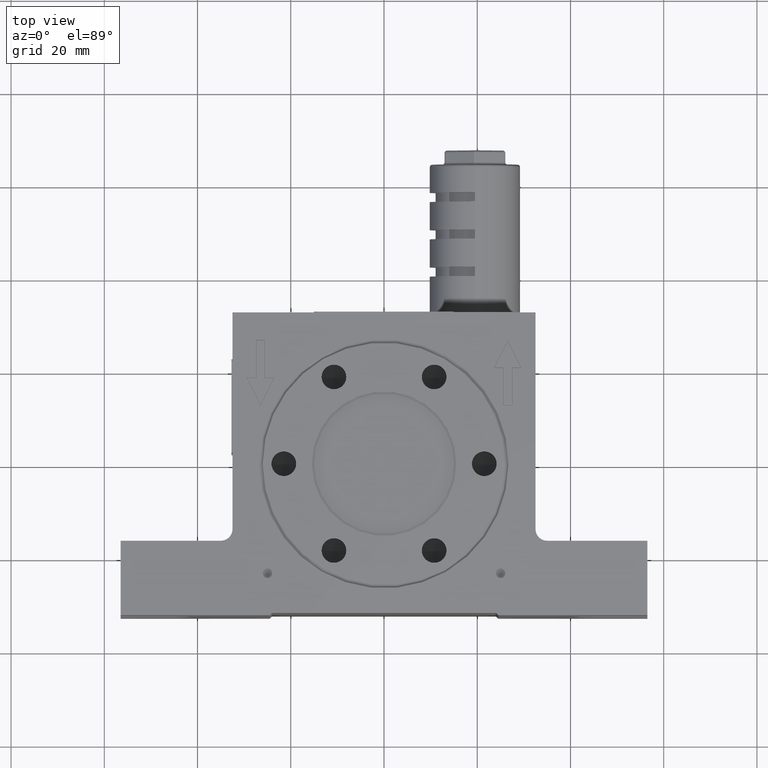
[diagram: clean part render]
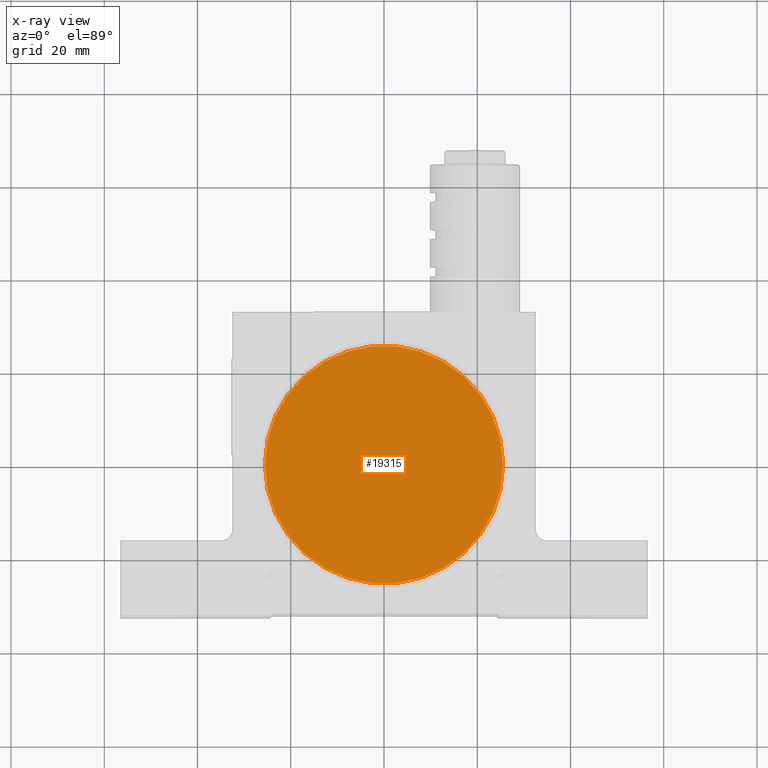
[diagram: x-ray — body ghosted, one internal face saturated and labeled with its STEP entity id]
A machine part, top view, then the same camera in x-ray: the body is ghosted and one INTERNAL B-rep face — a face not visible from any outside direction — is saturated and labeled: STEP entity #19315.
In plain terms, the highlighted planar face has unit normal (0, 0, 1).
Its self-contained STEP definition (entity closure, byte-faithful):
#641 = CARTESIAN_POINT ( 'NONE',  ( 0.0000000000000000000, 0.0000000000000000000, 9.500000000000000000 ) ) ;
#761 = DIRECTION ( 'NONE',  ( 1.000000000000000000, 0.0000000000000000000, 0.0000000000000000000 ) ) ;
#1406 = AXIS2_PLACEMENT_3D ( 'NONE', #15878, #17385, #2569 ) ;
#2023 = EDGE_LOOP ( 'NONE', ( #4842, #4991 ) ) ;
#2569 = DIRECTION ( 'NONE',  ( 1.000000000000000000, 0.0000000000000000000, 0.0000000000000000000 ) ) ;
#3571 = EDGE_CURVE ( 'NONE', #4522, #4630, #6135, .T. ) ;
#3970 = DIRECTION ( 'NONE',  ( -0.0000000000000000000, -0.0000000000000000000, -1.000000000000000000 ) ) ;
#4522 = VERTEX_POINT ( 'NONE', #7613 ) ;
#4630 = VERTEX_POINT ( 'NONE', #19493 ) ;
#4842 = ORIENTED_EDGE ( 'NONE', *, *, #8701, .T. ) ;
#4991 = ORIENTED_EDGE ( 'NONE', *, *, #3571, .T. ) ;
#6135 = CIRCLE ( 'NONE', #14151, 25.53500000000000000 ) ;
#7468 = CARTESIAN_POINT ( 'NONE',  ( 0.0000000000000000000, 0.0000000000000000000, 9.500000000000000000 ) ) ;
#7613 = CARTESIAN_POINT ( 'NONE',  ( -25.53500000000000000, 3.139382069614240100E-015, 9.500000000000000000 ) ) ;
#8701 = EDGE_CURVE ( 'NONE', #4630, #4522, #18253, .T. ) ;
#8855 = AXIS2_PLACEMENT_3D ( 'NONE', #7468, #10670, #761 ) ;
#10670 = DIRECTION ( 'NONE',  ( 0.0000000000000000000, 0.0000000000000000000, 1.000000000000000000 ) ) ;
#14023 = PLANE ( 'NONE',  #8855 ) ;
#14151 = AXIS2_PLACEMENT_3D ( 'NONE', #641, #3970, #21231 ) ;
#14771 = FACE_OUTER_BOUND ( 'NONE', #2023, .T. ) ;
#15878 = CARTESIAN_POINT ( 'NONE',  ( 0.0000000000000000000, 0.0000000000000000000, 9.500000000000000000 ) ) ;
#17385 = DIRECTION ( 'NONE',  ( -0.0000000000000000000, -0.0000000000000000000, -1.000000000000000000 ) ) ;
#18253 = CIRCLE ( 'NONE', #1406, 25.53500000000000000 ) ;
#19315 = ADVANCED_FACE ( 'NONE', ( #14771 ), #14023, .F. ) ;
#19493 = CARTESIAN_POINT ( 'NONE',  ( 25.53500000000000000, 0.0000000000000000000, 9.500000000000000000 ) ) ;
#21231 = DIRECTION ( 'NONE',  ( 1.000000000000000000, 0.0000000000000000000, 0.0000000000000000000 ) ) ;